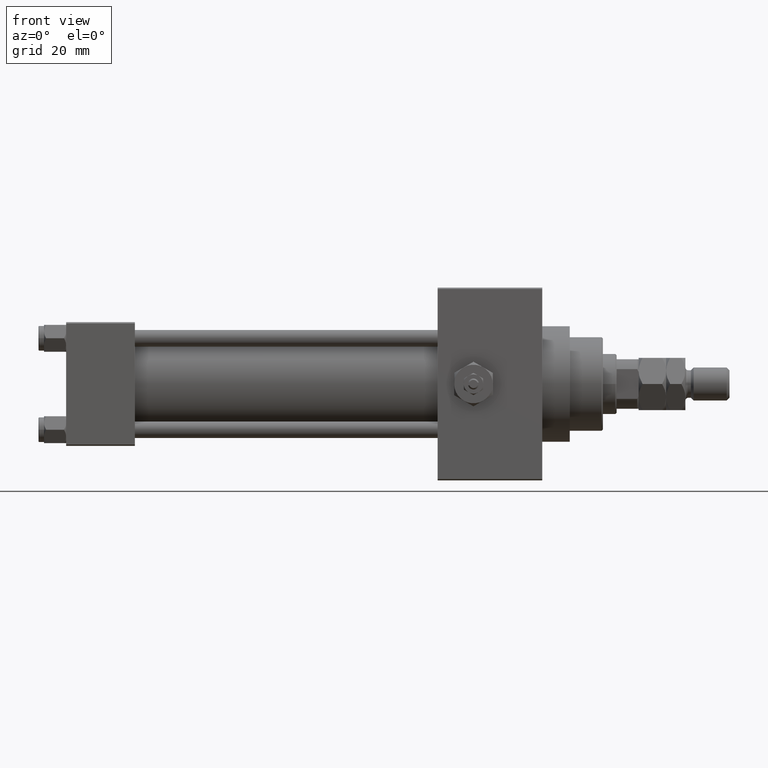
[diagram: clean part render]
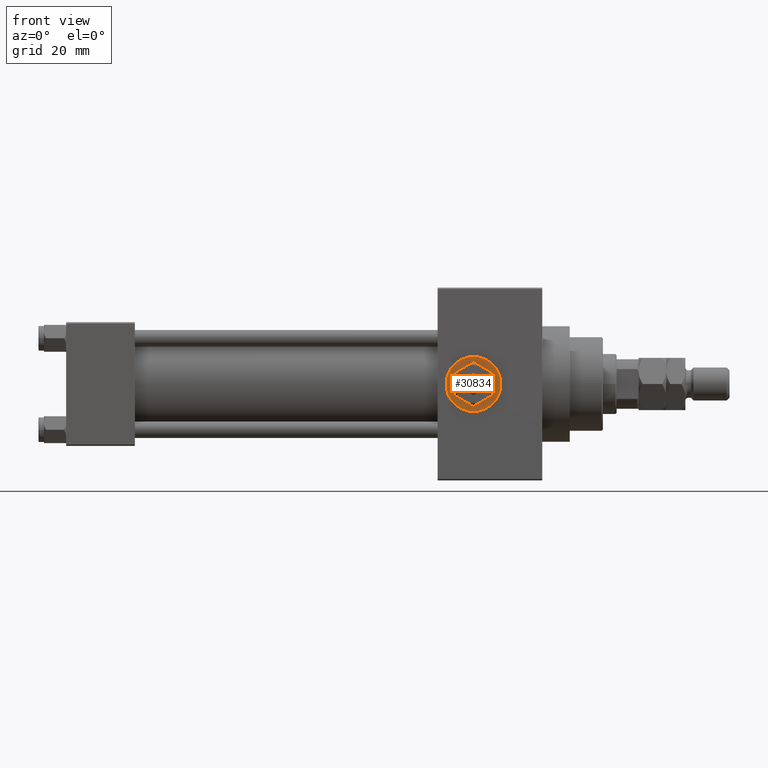
[diagram: same view with one face highlighted and labeled with its STEP entity id]
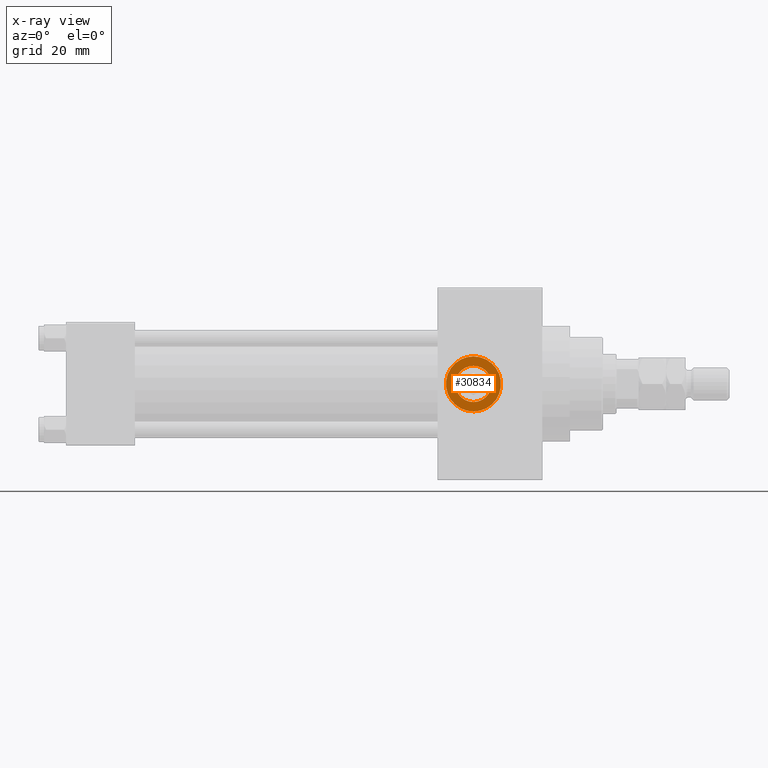
[diagram: x-ray of the same camera — body ghosted, the highlighted face saturated]
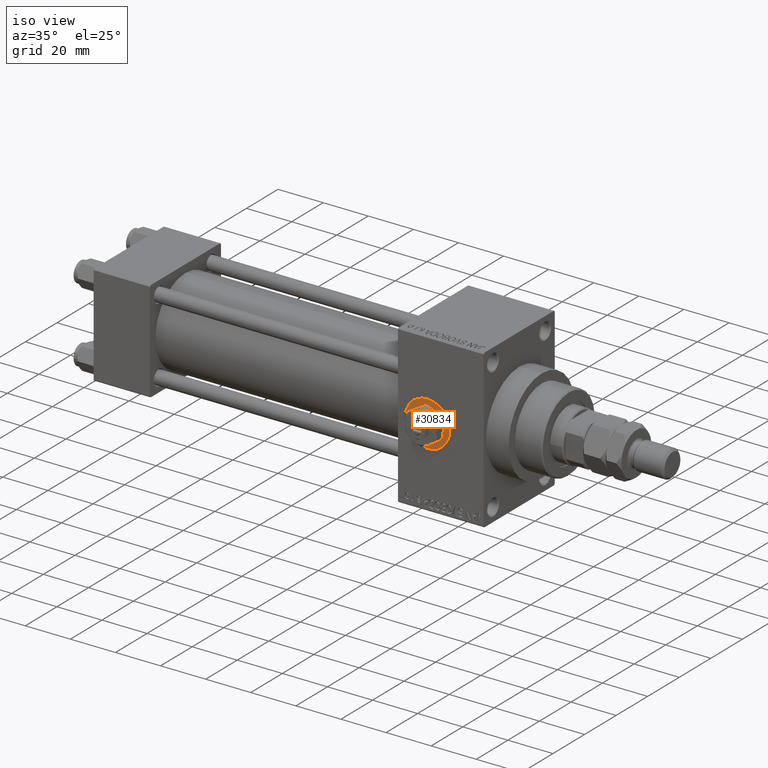
[diagram: same view with one face highlighted and labeled with its STEP entity id]
A machine part, front view. The second image highlights one B-rep face of the part: STEP entity #30834.
The next image is the same camera in x-ray: the body ghosted, the highlighted face saturated — about 0% of this face is hidden behind the body in this view.
A second angle (iso view) of the same face is appended — the face is thin or edge-on in the first view.
In plain terms, the highlighted planar face has unit normal (0, -1, -0).
Its self-contained STEP definition (entity closure, byte-faithful):
#1547 = VERTEX_POINT ( 'NONE', #4171 ) ;
#3712 = CARTESIAN_POINT ( 'NONE',  ( 148.0000000000000284, -22.30000000000000426, -10.00000000000000888 ) ) ;
#3928 = DIRECTION ( 'NONE',  ( 0.000000000000000000, 0.000000000000000000, -1.000000000000000000 ) ) ;
#4171 = CARTESIAN_POINT ( 'NONE',  ( 148.0000000000000284, -22.30000000000000426, -6.580000000000015170 ) ) ;
#8099 = AXIS2_PLACEMENT_3D ( 'NONE', #15606, #32164, #3928 ) ;
#8264 = ORIENTED_EDGE ( 'NONE', *, *, #9536, .T. ) ;
#9536 = EDGE_CURVE ( 'NONE', #44238, #11943, #16206, .T. ) ;
#11481 = DIRECTION ( 'NONE',  ( 0.000000000000000000, -1.000000000000000000, -8.673617379884036705E-17 ) ) ;
#11943 = VERTEX_POINT ( 'NONE', #37350 ) ;
#12427 = AXIS2_PLACEMENT_3D ( 'NONE', #12630, #16450, #15950 ) ;
#12630 = CARTESIAN_POINT ( 'NONE',  ( 148.0000000000000284, -22.30000000000000426, 1.734723475976808635E-17 ) ) ;
#14137 = EDGE_CURVE ( 'NONE', #11943, #44238, #39137, .T. ) ;
#15606 = CARTESIAN_POINT ( 'NONE',  ( 148.0000000000000284, -22.30000000000000426, 1.734723475976807403E-17 ) ) ;
#15950 = DIRECTION ( 'NONE',  ( 0.000000000000000000, 0.000000000000000000, -1.000000000000000000 ) ) ;
#16206 = CIRCLE ( 'NONE', #8099, 10.00000000000000888 ) ;
#16450 = DIRECTION ( 'NONE',  ( 0.000000000000000000, -1.000000000000000000, -8.673617379884036705E-17 ) ) ;
#16819 = CIRCLE ( 'NONE', #25781, 6.580000000000015170 ) ;
#17438 = DIRECTION ( 'NONE',  ( 0.000000000000000000, 8.673617379884036705E-17, -1.000000000000000000 ) ) ;
#18204 = VERTEX_POINT ( 'NONE', #31518 ) ;
#19045 = DIRECTION ( 'NONE',  ( 0.000000000000000000, 0.000000000000000000, -1.000000000000000000 ) ) ;
#21089 = EDGE_CURVE ( 'NONE', #18204, #1547, #40065, .T. ) ;
#24974 = AXIS2_PLACEMENT_3D ( 'NONE', #28902, #32987, #17438 ) ;
#25341 = PLANE ( 'NONE',  #24974 ) ;
#25781 = AXIS2_PLACEMENT_3D ( 'NONE', #31333, #11481, #30327 ) ;
#26625 = EDGE_LOOP ( 'NONE', ( #33918, #49159 ) ) ;
#28902 = CARTESIAN_POINT ( 'NONE',  ( 148.0000000000000284, -22.30000000000000426, 1.734723475976807403E-17 ) ) ;
#29409 = FACE_OUTER_BOUND ( 'NONE', #36573, .T. ) ;
#30327 = DIRECTION ( 'NONE',  ( 0.000000000000000000, 0.000000000000000000, -1.000000000000000000 ) ) ;
#30834 = ADVANCED_FACE ( 'NONE', ( #41133, #29409 ), #25341, .T. ) ;
#31333 = CARTESIAN_POINT ( 'NONE',  ( 148.0000000000000284, -22.30000000000000426, 1.734723475976808635E-17 ) ) ;
#31518 = CARTESIAN_POINT ( 'NONE',  ( 148.0000000000000284, -22.30000000000000426, 6.580000000000015170 ) ) ;
#31819 = AXIS2_PLACEMENT_3D ( 'NONE', #41225, #41477, #19045 ) ;
#32164 = DIRECTION ( 'NONE',  ( 0.000000000000000000, -1.000000000000000000, -8.673617379884036705E-17 ) ) ;
#32987 = DIRECTION ( 'NONE',  ( 0.000000000000000000, -1.000000000000000000, -8.673617379884036705E-17 ) ) ;
#33119 = EDGE_CURVE ( 'NONE', #1547, #18204, #16819, .T. ) ;
#33918 = ORIENTED_EDGE ( 'NONE', *, *, #33119, .F. ) ;
#36573 = EDGE_LOOP ( 'NONE', ( #8264, #39369 ) ) ;
#37350 = CARTESIAN_POINT ( 'NONE',  ( 148.0000000000000284, -22.30000000000000426, 10.00000000000000888 ) ) ;
#39137 = CIRCLE ( 'NONE', #31819, 10.00000000000000888 ) ;
#39369 = ORIENTED_EDGE ( 'NONE', *, *, #14137, .T. ) ;
#40065 = CIRCLE ( 'NONE', #12427, 6.580000000000015170 ) ;
#41133 = FACE_BOUND ( 'NONE', #26625, .T. ) ;
#41225 = CARTESIAN_POINT ( 'NONE',  ( 148.0000000000000284, -22.30000000000000426, 1.734723475976807403E-17 ) ) ;
#41477 = DIRECTION ( 'NONE',  ( 0.000000000000000000, -1.000000000000000000, -8.673617379884036705E-17 ) ) ;
#44238 = VERTEX_POINT ( 'NONE', #3712 ) ;
#49159 = ORIENTED_EDGE ( 'NONE', *, *, #21089, .F. ) ;